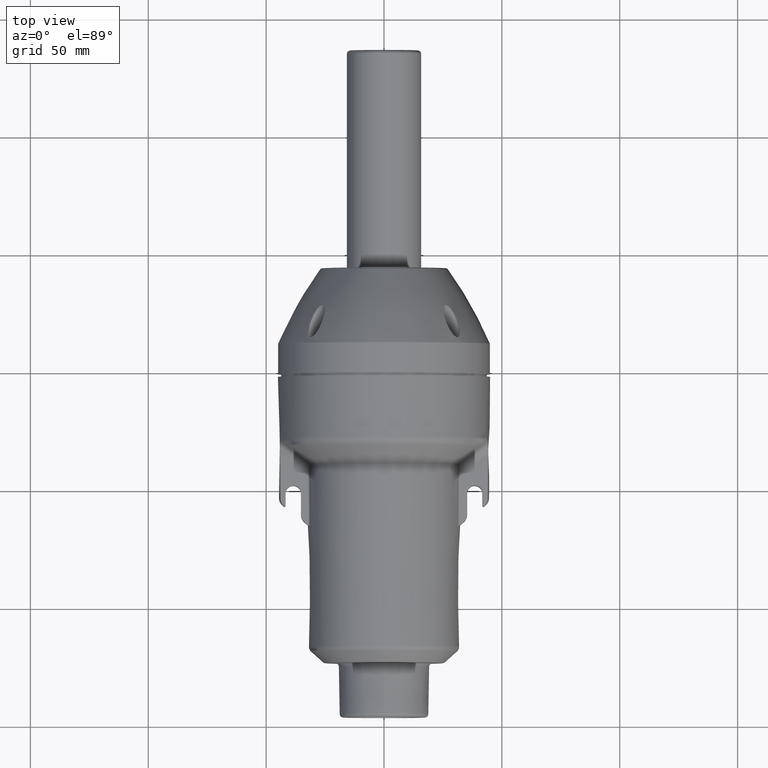
[diagram: clean part render]
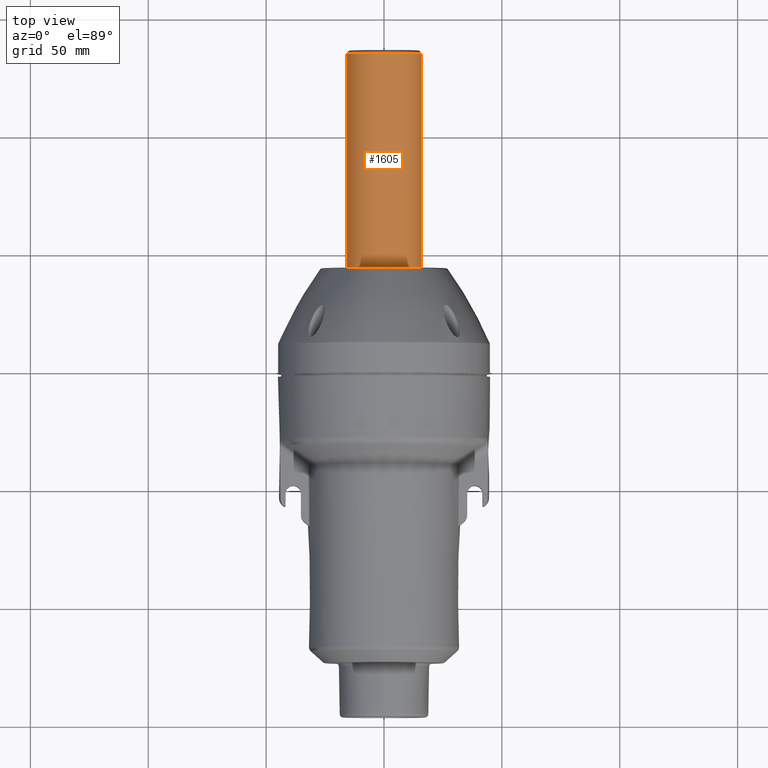
[diagram: same view with one face highlighted and labeled with its STEP entity id]
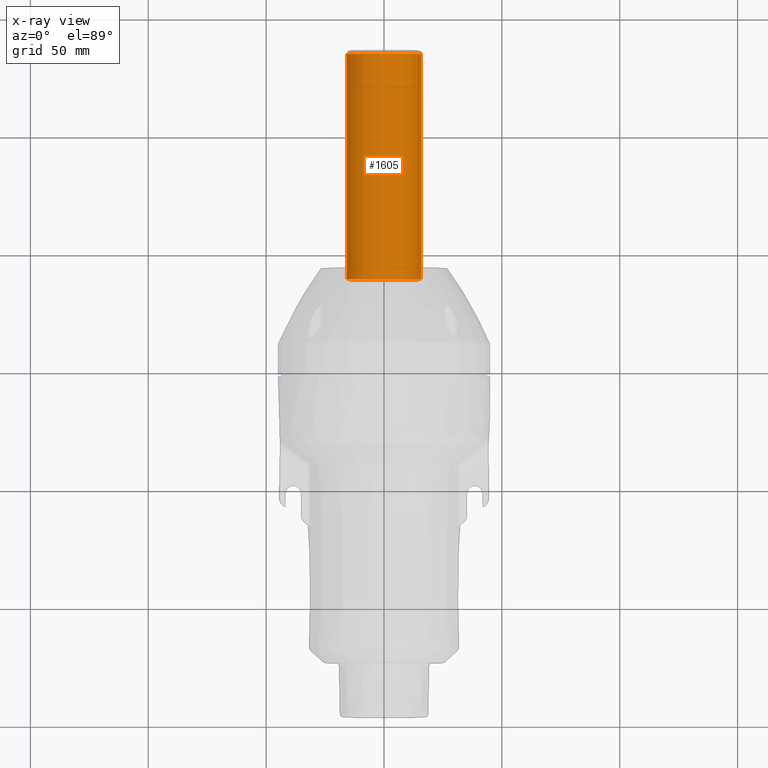
[diagram: x-ray of the same camera — body ghosted, the highlighted face saturated]
A machine part, top view. The second image highlights one B-rep face of the part: STEP entity #1605.
The next image is the same camera in x-ray: the body ghosted, the highlighted face saturated — about 0% of this face is hidden behind the body in this view.
In plain terms, the highlighted cylindrical surface (bore or boss wall) has radius 15.75 mm, axis along (-0, -1, -0).
Its self-contained STEP definition (entity closure, byte-faithful):
#1605 = ADVANCED_FACE( '', ( #3461, #3462 ), #3463, .T. );
#3461 = FACE_OUTER_BOUND( '', #8724, .T. );
#3462 = FACE_OUTER_BOUND( '', #8725, .T. );
#3463 = CYLINDRICAL_SURFACE( '', #8726, 15.7500000000005 );
#8724 = EDGE_LOOP( '', ( #14802 ) );
#8725 = EDGE_LOOP( '', ( #14803 ) );
#8726 = AXIS2_PLACEMENT_3D( '', #14804, #14805, #14806 );
#14802 = ORIENTED_EDGE( '', *, *, #18479, .F. );
#14803 = ORIENTED_EDGE( '', *, *, #16946, .F. );
#14804 = CARTESIAN_POINT( '', ( -4.10572934217742E-011, -19.0000000000000, -4.10615182535582E-011 ) );
#14805 = DIRECTION( '', ( -0.000000000000000, -1.00000000000000, -0.000000000000000 ) );
#14806 = DIRECTION( '', ( 1.00000000000000, 0.000000000000000, -1.44059117147300E-012 ) );
#16946 = EDGE_CURVE( '', #19663, #19663, #19664, .T. );
#18479 = EDGE_CURVE( '', #21955, #21955, #21956, .T. );
#19663 = VERTEX_POINT( '', #23719 );
#19664 = CIRCLE( '', #23720, 15.7500000000005 );
#21955 = VERTEX_POINT( '', #28531 );
#21956 = CIRCLE( '', #28532, 15.7500000000005 );
#23719 = CARTESIAN_POINT( '', ( -15.7500000000417, 134.749999999994, -1.84932499257933E-011 ) );
#23720 = AXIS2_PLACEMENT_3D( '', #30039, #30040, #30041 );
#28531 = CARTESIAN_POINT( '', ( -15.7500000000416, 39.2499999999954, -1.84192637509313E-011 ) );
#28532 = AXIS2_PLACEMENT_3D( '', #31762, #31763, #31764 );
#30039 = CARTESIAN_POINT( '', ( -4.12236528752624E-011, 134.749999999994, -4.11806321214768E-011 ) );
#30040 = DIRECTION( '', ( 0.000000000000000, 1.00000000000000, 0.000000000000000 ) );
#30041 = DIRECTION( '', ( -1.00000000000000, 0.000000000000000, 1.44046871083700E-012 ) );
#31762 = CARTESIAN_POINT( '', ( -4.11203206618612E-011, 39.2499999999954, -4.11066459466148E-011 ) );
#31763 = DIRECTION( '', ( 0.000000000000000, -1.00000000000000, 0.000000000000000 ) );
#31764 = DIRECTION( '', ( -1.00000000000000, 0.000000000000000, 1.44046871083700E-012 ) );